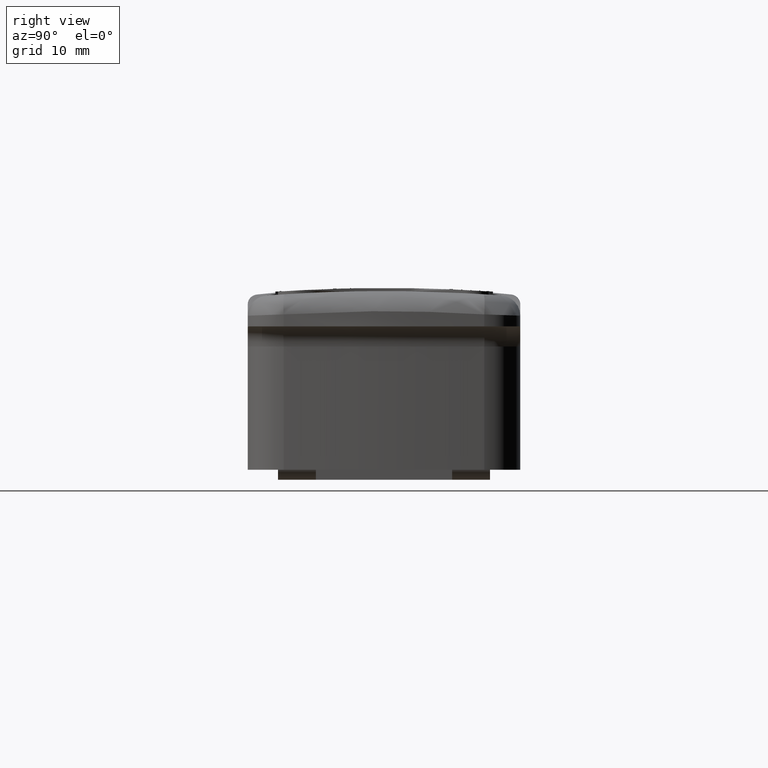
[diagram: clean part render]
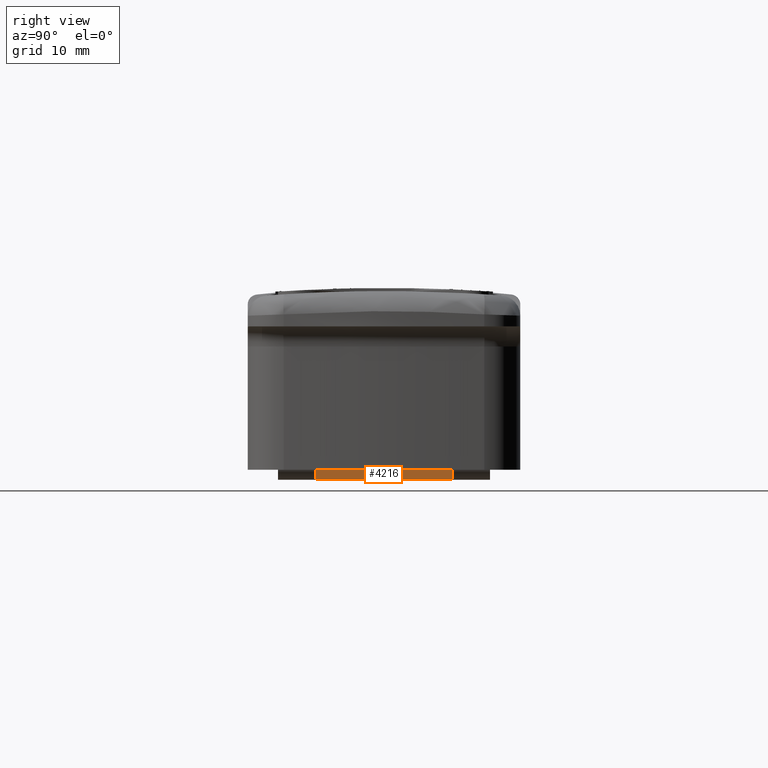
[diagram: same view with one face highlighted and labeled with its STEP entity id]
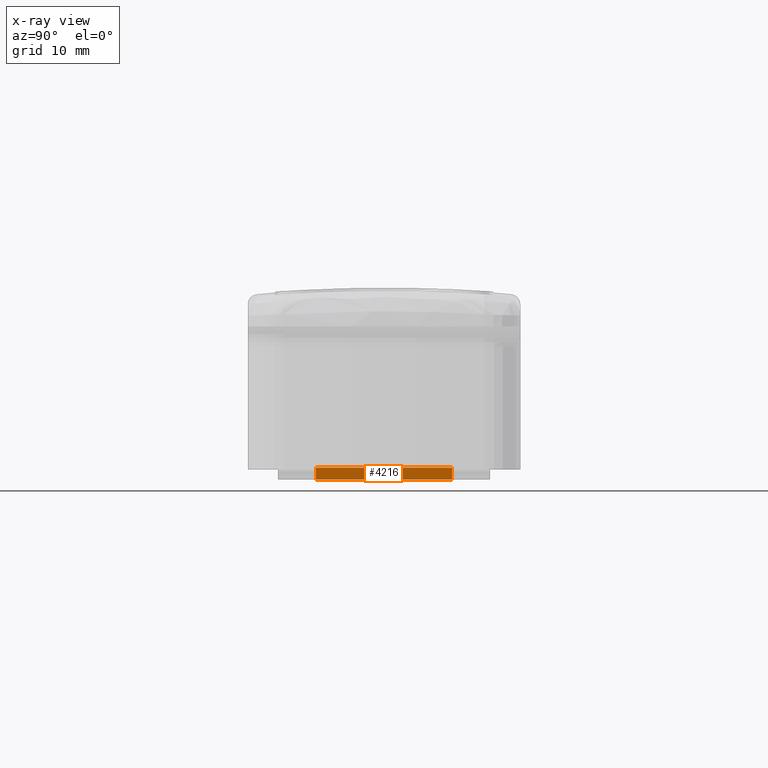
[diagram: x-ray of the same camera — body ghosted, the highlighted face saturated]
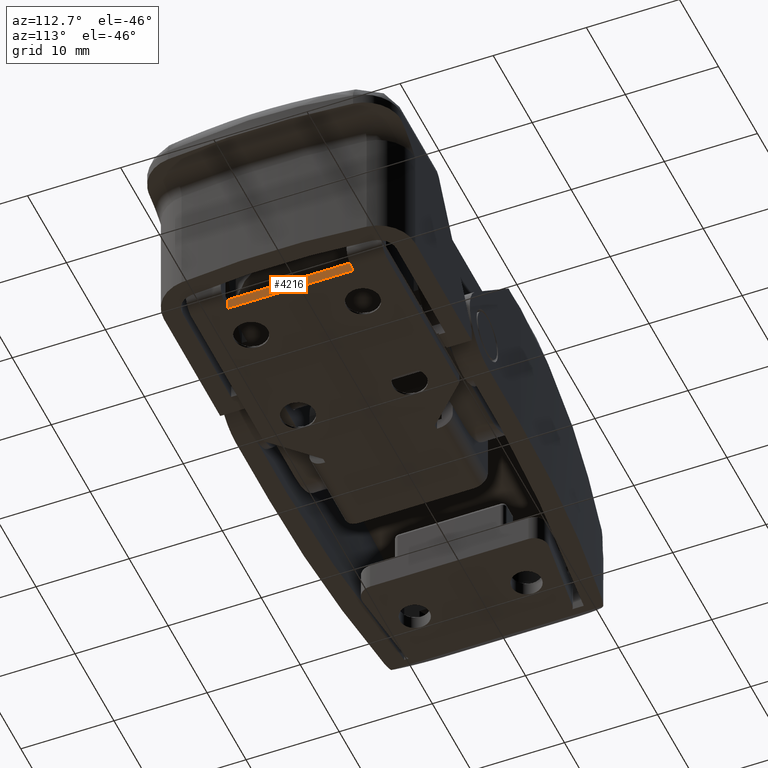
[diagram: same view with one face highlighted and labeled with its STEP entity id]
A machine part, right view. The second image highlights one B-rep face of the part: STEP entity #4216.
The next image is the same camera in x-ray: the body ghosted, the highlighted face saturated — about 0% of this face is hidden behind the body in this view.
A second angle (auxiliary view) of the same face is appended — the face is thin or edge-on in the first view.
In plain terms, the highlighted planar face has unit normal (1, -0, 0).
Its self-contained STEP definition (entity closure, byte-faithful):
#288=PLANE('',#4484);
#405=FACE_OUTER_BOUND('',#662,.T.);
#662=EDGE_LOOP('',(#2896,#2897,#2898,#2899));
#994=LINE('',#6186,#1325);
#995=LINE('',#6188,#1326);
#996=LINE('',#6190,#1327);
#997=LINE('',#6191,#1328);
#1325=VECTOR('',#4955,13.5);
#1326=VECTOR('',#4956,1.2);
#1327=VECTOR('',#4957,13.5);
#1328=VECTOR('',#4958,1.2);
#1847=VERTEX_POINT('',#6184);
#1848=VERTEX_POINT('',#6185);
#1849=VERTEX_POINT('',#6187);
#1850=VERTEX_POINT('',#6189);
#2266=EDGE_CURVE('',#1847,#1848,#994,.T.);
#2267=EDGE_CURVE('',#1847,#1849,#995,.T.);
#2268=EDGE_CURVE('',#1850,#1849,#996,.T.);
#2269=EDGE_CURVE('',#1850,#1848,#997,.T.);
#2896=ORIENTED_EDGE('',*,*,#2266,.F.);
#2897=ORIENTED_EDGE('',*,*,#2267,.T.);
#2898=ORIENTED_EDGE('',*,*,#2268,.F.);
#2899=ORIENTED_EDGE('',*,*,#2269,.T.);
#4216=ADVANCED_FACE('',(#405),#288,.T.);
#4484=AXIS2_PLACEMENT_3D('',#6183,#4953,#4954);
#4953=DIRECTION('center_axis',(1.,-9.69057066790751E-32,5.45094600069798E-30));
#4954=DIRECTION('ref_axis',(0.,0.,-1.));
#4955=DIRECTION('',(9.69057066790751E-32,1.,0.));
#4956=DIRECTION('',(0.,-1.2335811384724E-16,-1.));
#4957=DIRECTION('',(-9.69057066790751E-32,-1.,0.));
#4958=DIRECTION('',(0.,0.,1.));
#6183=CARTESIAN_POINT('Origin',(27.8,6.86319687950097E-15,2.25));
#6184=CARTESIAN_POINT('',(27.8,-6.74999999999999,1.2));
#6185=CARTESIAN_POINT('',(27.8,6.75000000000001,1.2));
#6186=CARTESIAN_POINT('',(27.8,4.81937722053193E-15,1.2));
#6187=CARTESIAN_POINT('',(27.8,-6.74999999999999,-3.33066907387547E-15));
#6188=CARTESIAN_POINT('',(27.8,-6.74999999999999,4.5));
#6189=CARTESIAN_POINT('',(27.8,6.75000000000001,-3.33066907387547E-15));
#6190=CARTESIAN_POINT('',(27.8,4.81937722053193E-15,0.));
#6191=CARTESIAN_POINT('',(27.8,6.75000000000001,-3.33066907387547E-15));